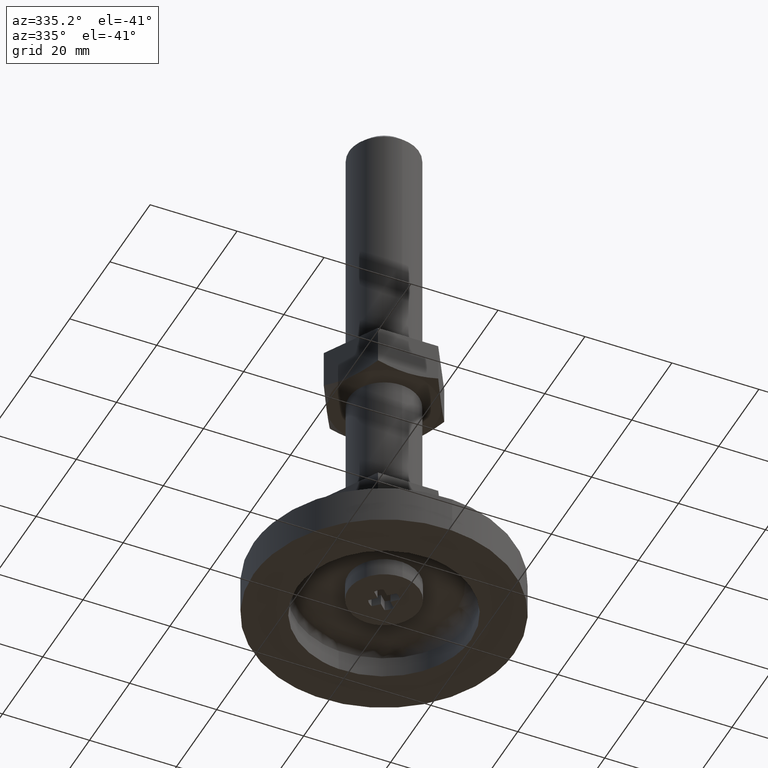
[diagram: clean part render]
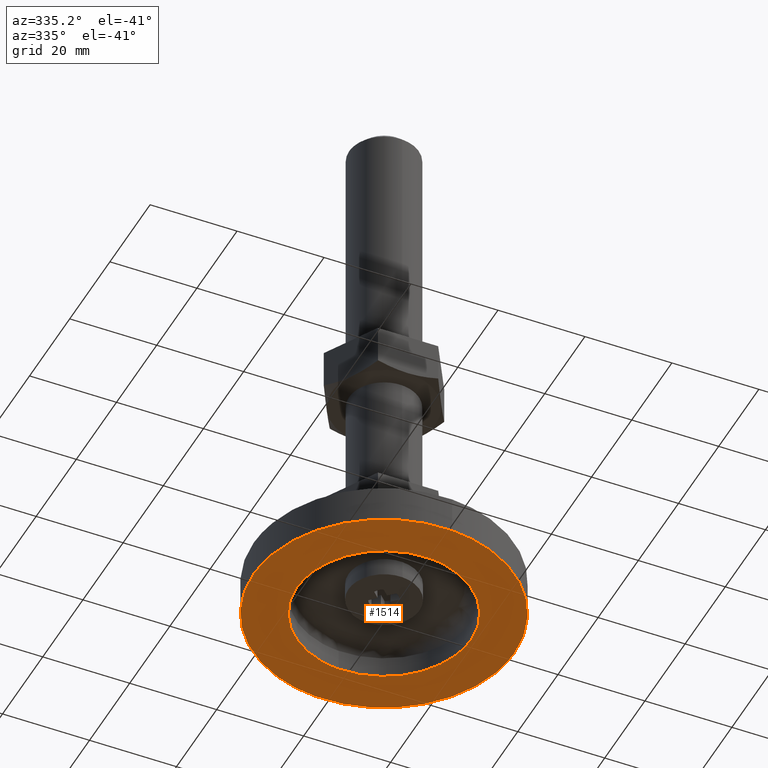
[diagram: same view with one face highlighted and labeled with its STEP entity id]
A machine part, auxiliary view. The second image highlights one B-rep face of the part: STEP entity #1514.
In plain terms, the highlighted face is a freeform B-spline surface patch.
Its self-contained STEP definition (entity closure, byte-faithful):
#1272=CARTESIAN_POINT('',(-1.220948347412878,19.962697341102078,-1.804112E-016));
#1273=VERTEX_POINT('',#1272);
#1279=CARTESIAN_POINT('',(20.0,0.0,0.0));
#1280=VERTEX_POINT('',#1279);
#1281=CARTESIAN_POINT('',(-1.220948347412879,19.962697341102086,-1.804112E-016));
#1282=CARTESIAN_POINT('',(-0.611044012865462,19.999999999987569,-1.778187E-016));
#1283=CARTESIAN_POINT('',(7.474369E-013,19.999999999987761,-1.750627E-016));
#1284=CARTESIAN_POINT('',(20.000000000000366,19.999999999994074,-8.485707E-017));
#1285=CARTESIAN_POINT('',(20.0,0.0,0.0));
#1293=(BOUNDED_CURVE()B_SPLINE_CURVE(2,(#1281,#1282,#1283,#1284,#1285),.UNSPECIFIED.,.F.,.U.)B_SPLINE_CURVE_WITH_KNOTS((3,2,3),(0.239333156229655,0.250000000000000,0.500000000000000),.UNSPECIFIED.)CURVE()GEOMETRIC_REPRESENTATION_ITEM()RATIONAL_B_SPLINE_CURVE((0.976072457426094,0.987503015174094,1.0,0.707106781186548,1.0))REPRESENTATION_ITEM(''));
#1294=EDGE_CURVE('',#1273,#1280,#1293,.T.);
#1296=CARTESIAN_POINT('',(1.220948347412882,-19.962697341102078,4.024558E-016));
#1297=VERTEX_POINT('',#1296);
#1298=CARTESIAN_POINT('',(20.0,0.0,0.0));
#1299=CARTESIAN_POINT('',(19.999999999999616,-18.814142529630164,2.012279E-016));
#1300=CARTESIAN_POINT('',(1.220948347412882,-19.962697341102078,4.024558E-016));
#1308=(BOUNDED_CURVE()B_SPLINE_CURVE(2,(#1298,#1299,#1300),.UNSPECIFIED.,.F.,.U.)B_SPLINE_CURVE_WITH_KNOTS((3,3),(0.500000000000000,0.739333156229655),.UNSPECIFIED.)CURVE()GEOMETRIC_REPRESENTATION_ITEM()RATIONAL_B_SPLINE_CURVE((1.0,0.719603766012454,0.976072457426094))REPRESENTATION_ITEM(''));
#1309=EDGE_CURVE('',#1280,#1297,#1308,.T.);
#1341=CARTESIAN_POINT('',(-20.0,0.0,0.0));
#1342=VERTEX_POINT('',#1341);
#1343=CARTESIAN_POINT('',(1.220948347412882,-19.962697341102078,4.024558E-016));
#1344=CARTESIAN_POINT('',(0.611044012865462,-19.999999999987569,3.966724E-016));
#1345=CARTESIAN_POINT('',(-7.502379E-013,-19.999999999987761,3.905245E-016));
#1346=CARTESIAN_POINT('',(-20.000000000000366,-19.999999999994074,1.892965E-016));
#1347=CARTESIAN_POINT('',(-20.0,0.0,0.0));
#1355=(BOUNDED_CURVE()B_SPLINE_CURVE(2,(#1343,#1344,#1345,#1346,#1347),.UNSPECIFIED.,.F.,.U.)B_SPLINE_CURVE_WITH_KNOTS((3,2,3),(0.739333156229655,0.750000000000000,1.0),.UNSPECIFIED.)CURVE()GEOMETRIC_REPRESENTATION_ITEM()RATIONAL_B_SPLINE_CURVE((0.976072457426094,0.987503015174094,1.0,0.707106781186548,1.0))REPRESENTATION_ITEM(''));
#1356=EDGE_CURVE('',#1297,#1342,#1355,.T.);
#1358=CARTESIAN_POINT('',(-20.0,0.0,0.0));
#1359=CARTESIAN_POINT('',(-19.999999999999616,18.814142529630164,-9.020562E-017));
#1360=CARTESIAN_POINT('',(-1.220948347412879,19.962697341102086,-1.804112E-016));
#1368=(BOUNDED_CURVE()B_SPLINE_CURVE(2,(#1358,#1359,#1360),.UNSPECIFIED.,.F.,.U.)B_SPLINE_CURVE_WITH_KNOTS((3,3),(0.0,0.239333156229655),.UNSPECIFIED.)CURVE()GEOMETRIC_REPRESENTATION_ITEM()RATIONAL_B_SPLINE_CURVE((1.0,0.719603766012454,0.976072457426094))REPRESENTATION_ITEM(''));
#1369=EDGE_CURVE('',#1342,#1273,#1368,.T.);
#1395=CARTESIAN_POINT('',(1.831418889831311,-29.944046233743570,-1.942890E-016));
#1396=VERTEX_POINT('',#1395);
#1402=CARTESIAN_POINT('',(30.0,0.0,0.0));
#1403=VERTEX_POINT('',#1402);
#1404=CARTESIAN_POINT('',(30.0,0.0,0.0));
#1405=CARTESIAN_POINT('',(29.999999999999282,-28.221217223199776,-9.714451E-017));
#1406=CARTESIAN_POINT('',(1.831418889831311,-29.944046233743574,-1.942890E-016));
#1414=(BOUNDED_CURVE()B_SPLINE_CURVE(2,(#1404,#1405,#1406),.UNSPECIFIED.,.F.,.U.)B_SPLINE_CURVE_WITH_KNOTS((3,3),(0.500000000000000,0.739333177154260),.UNSPECIFIED.)CURVE()GEOMETRIC_REPRESENTATION_ITEM()RATIONAL_B_SPLINE_CURVE((1.0,0.719603741497755,0.976072502271585))REPRESENTATION_ITEM(''));
#1415=EDGE_CURVE('',#1403,#1396,#1414,.T.);
#1417=CARTESIAN_POINT('',(-1.831418889831314,29.944046233743570,3.191891E-016));
#1418=VERTEX_POINT('',#1417);
#1419=CARTESIAN_POINT('',(-1.831418889831314,29.944046233743574,3.191891E-016));
#1420=CARTESIAN_POINT('',(-0.916564198563371,29.999999999977103,3.146023E-016));
#1421=CARTESIAN_POINT('',(1.378094E-012,29.999999999977462,3.097263E-016));
#1422=CARTESIAN_POINT('',(30.000000000000671,29.999999999989075,1.501318E-016));
#1423=CARTESIAN_POINT('',(30.0,0.0,0.0));
#1431=(BOUNDED_CURVE()B_SPLINE_CURVE(2,(#1419,#1420,#1421,#1422,#1423),.UNSPECIFIED.,.F.,.U.)B_SPLINE_CURVE_WITH_KNOTS((3,2,3),(0.239333177154260,0.250000000000000,0.500000000000000),.UNSPECIFIED.)CURVE()GEOMETRIC_REPRESENTATION_ITEM()RATIONAL_B_SPLINE_CURVE((0.976072502271585,0.987503039688793,1.0,0.707106781186547,1.0))REPRESENTATION_ITEM(''));
#1432=EDGE_CURVE('',#1418,#1403,#1431,.T.);
#1462=CARTESIAN_POINT('',(-30.0,0.0,0.0));
#1463=VERTEX_POINT('',#1462);
#1464=CARTESIAN_POINT('',(-30.0,0.0,0.0));
#1465=CARTESIAN_POINT('',(-29.999999999999282,28.221217223199776,1.595946E-016));
#1466=CARTESIAN_POINT('',(-1.831418889831314,29.944046233743574,3.191891E-016));
#1474=(BOUNDED_CURVE()B_SPLINE_CURVE(2,(#1464,#1465,#1466),.UNSPECIFIED.,.F.,.U.)B_SPLINE_CURVE_WITH_KNOTS((3,3),(0.0,0.239333177154260),.UNSPECIFIED.)CURVE()GEOMETRIC_REPRESENTATION_ITEM()RATIONAL_B_SPLINE_CURVE((1.0,0.719603741497755,0.976072502271585))REPRESENTATION_ITEM(''));
#1475=EDGE_CURVE('',#1463,#1418,#1474,.T.);
#1477=CARTESIAN_POINT('',(1.831418889831311,-29.944046233743574,-1.942890E-016));
#1478=CARTESIAN_POINT('',(0.916564198563367,-29.999999999977103,-1.914970E-016));
#1479=CARTESIAN_POINT('',(-1.381541E-012,-29.999999999977462,-1.885291E-016));
#1480=CARTESIAN_POINT('',(-30.000000000000671,-29.999999999989075,-9.138455E-017));
#1481=CARTESIAN_POINT('',(-30.0,0.0,0.0));
#1489=(BOUNDED_CURVE()B_SPLINE_CURVE(2,(#1477,#1478,#1479,#1480,#1481),.UNSPECIFIED.,.F.,.U.)B_SPLINE_CURVE_WITH_KNOTS((3,2,3),(0.739333177154260,0.750000000000000,1.0),.UNSPECIFIED.)CURVE()GEOMETRIC_REPRESENTATION_ITEM()RATIONAL_B_SPLINE_CURVE((0.976072502271585,0.987503039688793,1.0,0.707106781186547,1.0))REPRESENTATION_ITEM(''));
#1490=EDGE_CURVE('',#1396,#1463,#1489,.T.);
#1497=CARTESIAN_POINT('',(-32.996999883708362,-32.996261619275742,0.0));
#1498=CARTESIAN_POINT('',(32.997001493033771,-32.996261619275742,0.0));
#1499=CARTESIAN_POINT('',(-32.996999883708362,32.996260546392143,0.0));
#1500=CARTESIAN_POINT('',(32.997001493033771,32.996260546392143,0.0));
#1501=B_SPLINE_SURFACE_WITH_KNOTS('',1,1,((#1497,#1499),(#1498,#1500)),.UNSPECIFIED.,.F.,.F.,.U.,(2,2),(2,2),(0.0,65.994001376742119),(0.0,65.992522165667879),.UNSPECIFIED.);
#1502=ORIENTED_EDGE('',*,*,#1475,.T.);
#1503=ORIENTED_EDGE('',*,*,#1432,.T.);
#1504=ORIENTED_EDGE('',*,*,#1415,.T.);
#1505=ORIENTED_EDGE('',*,*,#1490,.T.);
#1506=EDGE_LOOP('',(#1502,#1503,#1504,#1505));
#1507=FACE_OUTER_BOUND('',#1506,.T.);
#1508=ORIENTED_EDGE('',*,*,#1309,.F.);
#1509=ORIENTED_EDGE('',*,*,#1294,.F.);
#1510=ORIENTED_EDGE('',*,*,#1369,.F.);
#1511=ORIENTED_EDGE('',*,*,#1356,.F.);
#1512=EDGE_LOOP('',(#1508,#1509,#1510,#1511));
#1513=FACE_BOUND('',#1512,.T.);
#1514=ADVANCED_FACE('',(#1507,#1513),#1501,.F.);